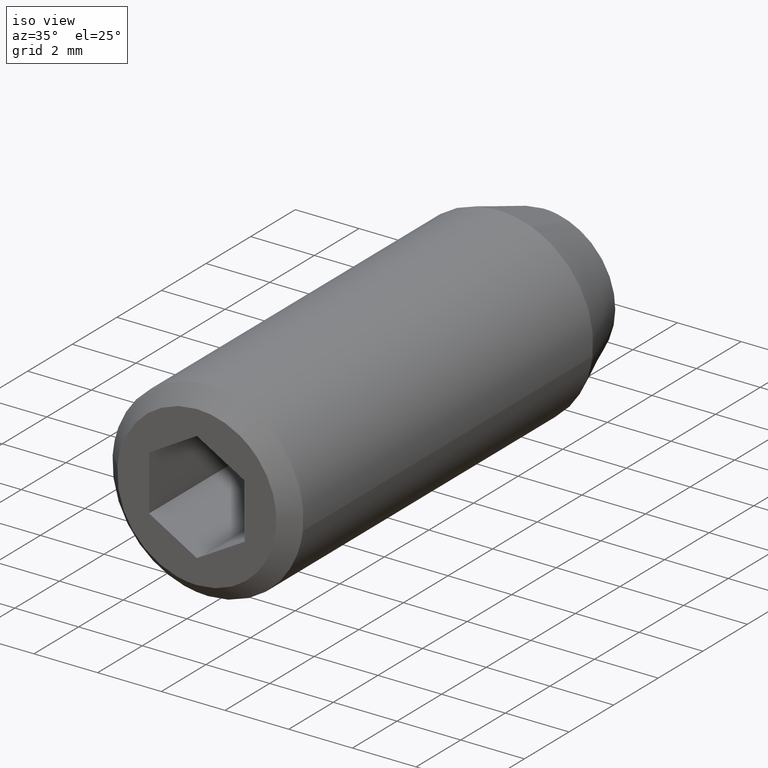
[diagram: clean part render]
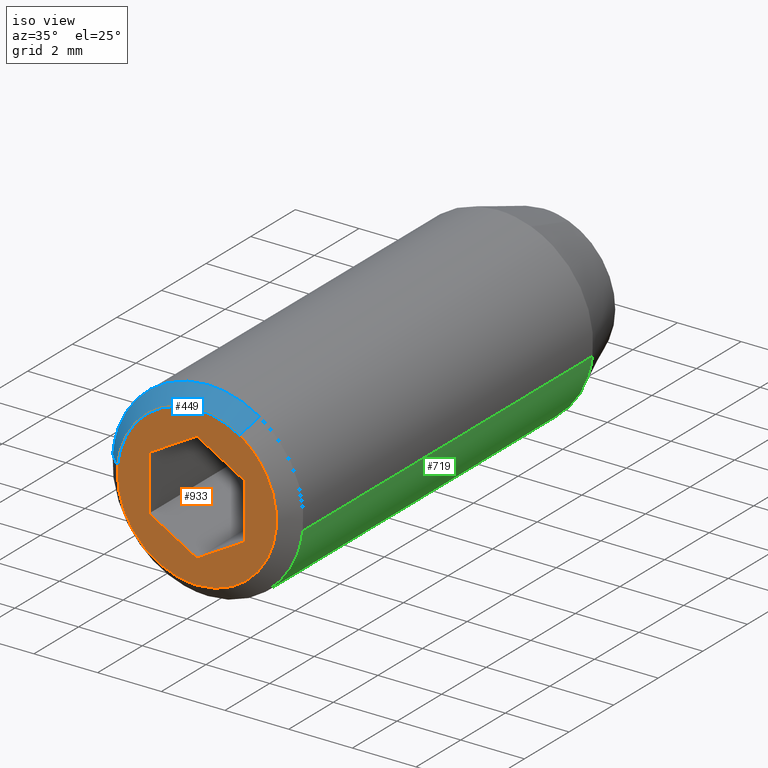
[diagram: same view with three faces highlighted in distinct colors, each labeled with its STEP entity id]
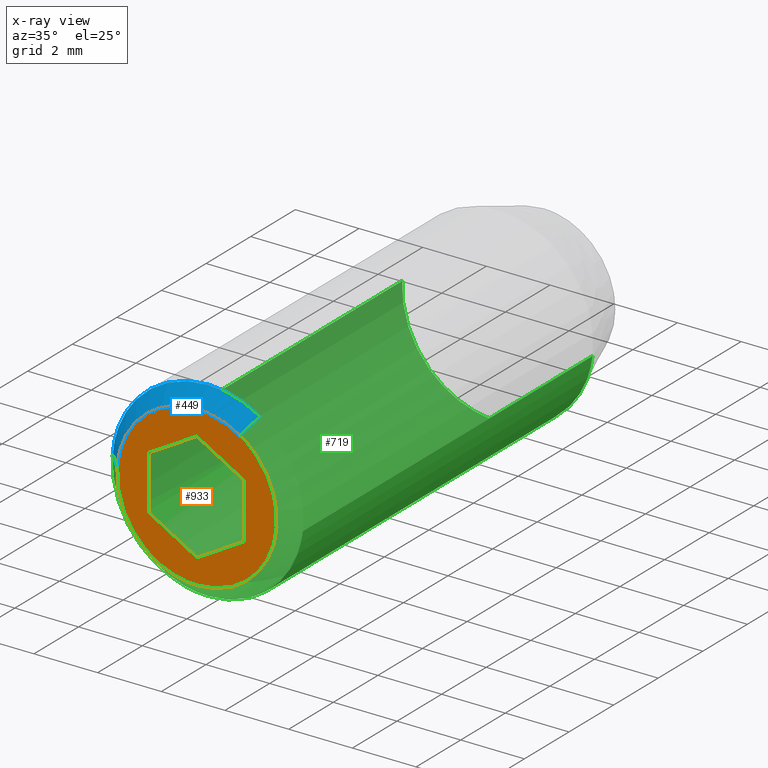
[diagram: x-ray of the same camera — body ghosted, the three highlighted faces saturated]
A machine part, iso view with three faces highlighted in distinct colors.
The next image is the same camera in x-ray (body ghosted, the three faces saturated) — at least one of them is partly hidden behind the body in this view.
Their STEP definitions:

[orange] entity #933 — the highlighted face is a freeform B-spline surface patch.
#275=CARTESIAN_POINT('',(1.344626983623041,-15.549999999999541,2.107600122156740));
#276=VERTEX_POINT('',#275);
#282=CARTESIAN_POINT('',(0.0,-15.550000000000001,-2.500000000000001));
#283=VERTEX_POINT('',#282);
#284=CARTESIAN_POINT('',(0.0,-15.550000000000001,-2.500000000000001));
#285=CARTESIAN_POINT('',(2.500000000000000,-15.549999999999994,-2.500000000000001));
#286=CARTESIAN_POINT('',(2.500000000000000,-15.550000000000001,-6.765950E-016));
#287=CARTESIAN_POINT('',(2.500000000000000,-15.549999999999994,1.370484140025540));
#288=CARTESIAN_POINT('',(1.344626983623042,-15.549999999999534,2.107600122156739));
#296=(BOUNDED_CURVE()B_SPLINE_CURVE(2,(#284,#285,#286,#287,#288),.UNSPECIFIED.,.F.,.U.)B_SPLINE_CURVE_WITH_KNOTS((3,2,3),(0.0,0.250000000000000,0.407950112626514),.UNSPECIFIED.)CURVE()GEOMETRIC_REPRESENTATION_ITEM()RATIONAL_B_SPLINE_CURVE((1.0,0.707106781186548,1.0,0.814949932403492,0.863729296954284))REPRESENTATION_ITEM(''));
#297=EDGE_CURVE('',#283,#276,#296,.T.);
#299=CARTESIAN_POINT('',(-2.492293334334823,-15.549999999994959,0.196147739358426));
#300=VERTEX_POINT('',#299);
#301=CARTESIAN_POINT('',(-2.492293334334823,-15.549999999994961,0.196147739358426));
#302=CARTESIAN_POINT('',(-2.500000000000000,-15.549999999999995,0.098225267557770));
#303=CARTESIAN_POINT('',(-2.500000000000000,-15.550000000000001,-6.765950E-016));
#304=CARTESIAN_POINT('',(-2.500000000000000,-15.549999999999994,-2.500000000000001));
#305=CARTESIAN_POINT('',(0.0,-15.550000000000001,-2.500000000000001));
#313=(BOUNDED_CURVE()B_SPLINE_CURVE(2,(#301,#302,#303,#304,#305),.UNSPECIFIED.,.F.,.U.)B_SPLINE_CURVE_WITH_KNOTS((3,2,3),(0.736331300627482,0.750000000000000,1.0),.UNSPECIFIED.)CURVE()GEOMETRIC_REPRESENTATION_ITEM()RATIONAL_B_SPLINE_CURVE((0.969723356160786,0.983986122575159,1.0,0.707106781186548,1.0))REPRESENTATION_ITEM(''));
#314=EDGE_CURVE('',#300,#283,#313,.T.);
#418=CARTESIAN_POINT('',(0.0,-15.550000000000001,2.499999999999999));
#419=VERTEX_POINT('',#418);
#420=CARTESIAN_POINT('',(0.0,-15.550000000000001,2.499999999999999));
#421=CARTESIAN_POINT('',(-2.310976229074044,-15.549999999999999,2.499999999999999));
#422=CARTESIAN_POINT('',(-2.492293334334823,-15.549999999994958,0.196147739358426));
#430=(BOUNDED_CURVE()B_SPLINE_CURVE(2,(#420,#421,#422),.UNSPECIFIED.,.F.,.U.)B_SPLINE_CURVE_WITH_KNOTS((3,3),(0.500000000000000,0.736331300627481),.UNSPECIFIED.)CURVE()GEOMETRIC_REPRESENTATION_ITEM()RATIONAL_B_SPLINE_CURVE((1.0,0.723120658611389,0.969723356160785))REPRESENTATION_ITEM(''));
#431=EDGE_CURVE('',#419,#300,#430,.T.);
#433=CARTESIAN_POINT('',(1.344626983623041,-15.549999999999541,2.107600122156740));
#434=CARTESIAN_POINT('',(0.729570138457539,-15.549999999999995,2.500000000000000));
#435=CARTESIAN_POINT('',(0.0,-15.550000000000001,2.499999999999999));
#443=(BOUNDED_CURVE()B_SPLINE_CURVE(2,(#433,#434,#435),.UNSPECIFIED.,.F.,.U.)B_SPLINE_CURVE_WITH_KNOTS((3,3),(0.407950112626514,0.500000000000000),.UNSPECIFIED.)CURVE()GEOMETRIC_REPRESENTATION_ITEM()RATIONAL_B_SPLINE_CURVE((0.863729296954284,0.892156848783056,1.0))REPRESENTATION_ITEM(''));
#444=EDGE_CURVE('',#276,#419,#443,.T.);
#787=CARTESIAN_POINT('',(1.084202E-016,-15.550000000000001,1.732051000000000));
#788=VERTEX_POINT('',#787);
#789=CARTESIAN_POINT('',(-1.500000000000000,-15.550000000000001,0.866025000000000));
#790=VERTEX_POINT('',#789);
#791=CARTESIAN_POINT('',(1.084202E-016,-15.550000000000001,1.732051000000000));
#792=CARTESIAN_POINT('',(-1.500000000000000,-15.550000000000001,0.866025000000000));
#793=QUASI_UNIFORM_CURVE('',1,(#791,#792),.UNSPECIFIED.,.F.,.U.);
#794=EDGE_CURVE('',#788,#790,#793,.T.);
#815=CARTESIAN_POINT('',(1.500000000000000,-15.550000000000001,0.866025000000000));
#816=VERTEX_POINT('',#815);
#817=CARTESIAN_POINT('',(1.500000000000000,-15.550000000000001,0.866025000000000));
#818=CARTESIAN_POINT('',(1.084202E-016,-15.550000000000001,1.732051000000000));
#819=QUASI_UNIFORM_CURVE('',1,(#817,#818),.UNSPECIFIED.,.F.,.U.);
#820=EDGE_CURVE('',#816,#788,#819,.T.);
#837=CARTESIAN_POINT('',(1.500000000000000,-15.550000000000001,-0.866025000000000));
#838=VERTEX_POINT('',#837);
#839=CARTESIAN_POINT('',(1.500000000000000,-15.550000000000001,-0.866025000000000));
#840=CARTESIAN_POINT('',(1.500000000000000,-15.550000000000001,0.866025000000000));
#841=QUASI_UNIFORM_CURVE('',1,(#839,#840),.UNSPECIFIED.,.F.,.U.);
#842=EDGE_CURVE('',#838,#816,#841,.T.);
#859=CARTESIAN_POINT('',(0.0,-15.550000000000001,-1.732051000000000));
#860=VERTEX_POINT('',#859);
#861=CARTESIAN_POINT('',(0.0,-15.550000000000001,-1.732051000000000));
#862=CARTESIAN_POINT('',(1.500000000000000,-15.550000000000001,-0.866025000000000));
#863=QUASI_UNIFORM_CURVE('',1,(#861,#862),.UNSPECIFIED.,.F.,.U.);
#864=EDGE_CURVE('',#860,#838,#863,.T.);
#881=CARTESIAN_POINT('',(-1.500000000000000,-15.550000000000001,-0.866025000000000));
#882=VERTEX_POINT('',#881);
#883=CARTESIAN_POINT('',(-1.500000000000000,-15.550000000000001,-0.866025000000000));
#884=CARTESIAN_POINT('',(0.0,-15.550000000000001,-1.732051000000000));
#885=QUASI_UNIFORM_CURVE('',1,(#883,#884),.UNSPECIFIED.,.F.,.U.);
#886=EDGE_CURVE('',#882,#860,#885,.T.);
#903=CARTESIAN_POINT('',(-1.500000000000000,-15.550000000000001,0.866025000000000));
#904=CARTESIAN_POINT('',(-1.500000000000000,-15.550000000000001,-0.866025000000000));
#905=QUASI_UNIFORM_CURVE('',1,(#903,#904),.UNSPECIFIED.,.F.,.U.);
#906=EDGE_CURVE('',#790,#882,#905,.T.);
#914=CARTESIAN_POINT('',(-2.748977449882766,-15.550000000000001,2.749749990309029));
#915=CARTESIAN_POINT('',(-2.748977449882766,-15.550000000000001,-2.749750124419482));
#916=CARTESIAN_POINT('',(2.748788756478569,-15.550000000000001,2.749749990309029));
#917=CARTESIAN_POINT('',(2.748788756478569,-15.550000000000001,-2.749750124419482));
#918=B_SPLINE_SURFACE_WITH_KNOTS('',1,1,((#914,#916),(#915,#917)),.UNSPECIFIED.,.F.,.F.,.U.,(2,2),(2,2),(0.0,5.499500114728511),(0.0,5.497766206361334),.UNSPECIFIED.);
#919=ORIENTED_EDGE('',*,*,#297,.T.);
#920=ORIENTED_EDGE('',*,*,#444,.T.);
#921=ORIENTED_EDGE('',*,*,#431,.T.);
#922=ORIENTED_EDGE('',*,*,#314,.T.);
#923=EDGE_LOOP('',(#919,#920,#921,#922));
#924=FACE_OUTER_BOUND('',#923,.T.);
#925=ORIENTED_EDGE('',*,*,#906,.F.);
#926=ORIENTED_EDGE('',*,*,#794,.F.);
#927=ORIENTED_EDGE('',*,*,#820,.F.);
#928=ORIENTED_EDGE('',*,*,#842,.F.);
#929=ORIENTED_EDGE('',*,*,#864,.F.);
#930=ORIENTED_EDGE('',*,*,#886,.F.);
#931=EDGE_LOOP('',(#925,#926,#927,#928,#929,#930));
#932=FACE_BOUND('',#931,.T.);
#933=ADVANCED_FACE('',(#924,#932),#918,.T.);

[blue] entity #449 — the highlighted face is a freeform B-spline surface patch.
#258=CARTESIAN_POINT('',(1.613552380348581,-15.049999999999390,2.529120146587553));
#259=VERTEX_POINT('',#258);
#275=CARTESIAN_POINT('',(1.344626983623041,-15.549999999999541,2.107600122156740));
#276=VERTEX_POINT('',#275);
#277=CARTESIAN_POINT('',(1.344626983623041,-15.549999999999541,2.107600122156740));
#278=CARTESIAN_POINT('',(1.613552380348581,-15.049999999999390,2.529120146587553));
#279=QUASI_UNIFORM_CURVE('',1,(#277,#278),.UNSPECIFIED.,.F.,.U.);
#280=EDGE_CURVE('',#276,#259,#279,.T.);
#299=CARTESIAN_POINT('',(-2.492293334334823,-15.549999999994959,0.196147739358426));
#300=VERTEX_POINT('',#299);
#316=CARTESIAN_POINT('',(-2.990751486467367,-15.050000547912260,0.235376844060400));
#317=VERTEX_POINT('',#316);
#318=CARTESIAN_POINT('',(-2.492293334334823,-15.549999999994959,0.196147739358426));
#319=CARTESIAN_POINT('',(-2.990751486467367,-15.050000547912260,0.235376844060400));
#320=QUASI_UNIFORM_CURVE('',1,(#318,#319),.UNSPECIFIED.,.F.,.U.);
#321=EDGE_CURVE('',#300,#317,#320,.T.);
#371=CARTESIAN_POINT('',(-2.479831867661154,-15.562500000000000,0.195167000623015));
#372=CARTESIAN_POINT('',(-2.284664867038139,-15.562500000000004,2.674998868284169));
#373=CARTESIAN_POINT('',(0.195167000623016,-15.562500000000000,2.479831867661153));
#374=CARTESIAN_POINT('',(0.814319478020443,-15.562500000000004,2.431103510905284));
#375=CARTESIAN_POINT('',(1.337903848697430,-15.562499999999998,2.097062121550191));
#376=CARTESIAN_POINT('',(-3.003525004537841,-15.037187500000000,0.236382544347549));
#377=CARTESIAN_POINT('',(-2.767142460190291,-15.037187500000002,3.239907548885390));
#378=CARTESIAN_POINT('',(0.236382544347550,-15.037187500000000,3.003525004537840));
#379=CARTESIAN_POINT('',(0.986288201959183,-15.037187499999991,2.944506149326367));
#380=CARTESIAN_POINT('',(1.620443593629642,-15.037187499999991,2.539921597219273));
#388=(BOUNDED_SURFACE()B_SPLINE_SURFACE(2,1,((#371,#376),(#372,#377),(#373,#378),(#374,#379),(#375,#380)),.UNSPECIFIED.,.F.,.F.,.U.)B_SPLINE_SURFACE_WITH_KNOTS((3,2,3),(2,2),(0.0,4.991791193548763,6.589164375484368),(0.0,1.0),.UNSPECIFIED.)GEOMETRIC_REPRESENTATION_ITEM()RATIONAL_B_SPLINE_SURFACE(((1.0,1.0),(0.707106781186548,0.707106781186548),(1.0,1.0),(0.906274169979695,0.906274169979695),(0.872532871172386,0.872532871172386)))REPRESENTATION_ITEM('')SURFACE());
#389=CARTESIAN_POINT('',(0.0,-15.050000000000001,2.999999999999999));
#390=VERTEX_POINT('',#389);
#391=CARTESIAN_POINT('',(1.613552380348582,-15.049999999999390,2.529120146587553));
#392=CARTESIAN_POINT('',(0.875484166150211,-15.050000000000001,3.000000000000000));
#393=CARTESIAN_POINT('',(0.0,-15.050000000000001,2.999999999999999));
#401=(BOUNDED_CURVE()B_SPLINE_CURVE(2,(#391,#392,#393),.UNSPECIFIED.,.F.,.U.)B_SPLINE_CURVE_WITH_KNOTS((3,3),(0.407950112626405,0.500000000000000),.UNSPECIFIED.)CURVE()GEOMETRIC_REPRESENTATION_ITEM()RATIONAL_B_SPLINE_CURVE((0.863729296954217,0.892156848782928,1.0))REPRESENTATION_ITEM(''));
#402=EDGE_CURVE('',#259,#390,#401,.T.);
#403=ORIENTED_EDGE('',*,*,#402,.T.);
#404=CARTESIAN_POINT('',(0.0,-15.050000000000001,2.999999999999999));
#405=CARTESIAN_POINT('',(-2.773172219317691,-15.049999999999995,2.999999999999999));
#406=CARTESIAN_POINT('',(-2.990751486467367,-15.050000547912258,0.235376844060400));
#414=(BOUNDED_CURVE()B_SPLINE_CURVE(2,(#404,#405,#406),.UNSPECIFIED.,.F.,.U.)B_SPLINE_CURVE_WITH_KNOTS((3,3),(0.500000000000000,0.736331346502732),.UNSPECIFIED.)CURVE()GEOMETRIC_REPRESENTATION_ITEM()RATIONAL_B_SPLINE_CURVE((1.0,0.723120604865190,0.969723451898952))REPRESENTATION_ITEM(''));
#415=EDGE_CURVE('',#390,#317,#414,.T.);
#416=ORIENTED_EDGE('',*,*,#415,.T.);
#417=ORIENTED_EDGE('',*,*,#321,.F.);
#418=CARTESIAN_POINT('',(0.0,-15.550000000000001,2.499999999999999));
#419=VERTEX_POINT('',#418);
#420=CARTESIAN_POINT('',(0.0,-15.550000000000001,2.499999999999999));
#421=CARTESIAN_POINT('',(-2.310976229074044,-15.549999999999999,2.499999999999999));
#422=CARTESIAN_POINT('',(-2.492293334334823,-15.549999999994958,0.196147739358426));
#430=(BOUNDED_CURVE()B_SPLINE_CURVE(2,(#420,#421,#422),.UNSPECIFIED.,.F.,.U.)B_SPLINE_CURVE_WITH_KNOTS((3,3),(0.500000000000000,0.736331300627481),.UNSPECIFIED.)CURVE()GEOMETRIC_REPRESENTATION_ITEM()RATIONAL_B_SPLINE_CURVE((1.0,0.723120658611389,0.969723356160785))REPRESENTATION_ITEM(''));
#431=EDGE_CURVE('',#419,#300,#430,.T.);
#432=ORIENTED_EDGE('',*,*,#431,.F.);
#433=CARTESIAN_POINT('',(1.344626983623041,-15.549999999999541,2.107600122156740));
#434=CARTESIAN_POINT('',(0.729570138457539,-15.549999999999995,2.500000000000000));
#435=CARTESIAN_POINT('',(0.0,-15.550000000000001,2.499999999999999));
#443=(BOUNDED_CURVE()B_SPLINE_CURVE(2,(#433,#434,#435),.UNSPECIFIED.,.F.,.U.)B_SPLINE_CURVE_WITH_KNOTS((3,3),(0.407950112626514,0.500000000000000),.UNSPECIFIED.)CURVE()GEOMETRIC_REPRESENTATION_ITEM()RATIONAL_B_SPLINE_CURVE((0.863729296954284,0.892156848783056,1.0))REPRESENTATION_ITEM(''));
#444=EDGE_CURVE('',#276,#419,#443,.T.);
#445=ORIENTED_EDGE('',*,*,#444,.F.);
#446=ORIENTED_EDGE('',*,*,#280,.T.);
#447=EDGE_LOOP('',(#403,#416,#417,#432,#445,#446));
#448=FACE_OUTER_BOUND('',#447,.T.);
#449=ADVANCED_FACE('',(#448),#388,.T.);

[green] entity #719 — the highlighted face is a freeform B-spline surface patch.
#256=CARTESIAN_POINT('',(2.979028827039997,-15.050000000000001,-0.354100617989129));
#257=VERTEX_POINT('',#256);
#323=CARTESIAN_POINT('',(-2.994404631648551,-15.049999999999990,0.183141753695629));
#324=VERTEX_POINT('',#323);
#338=CARTESIAN_POINT('',(0.0,-15.050000000000001,-3.000000000000001));
#339=VERTEX_POINT('',#338);
#340=CARTESIAN_POINT('',(-2.994404631648550,-15.049999999999997,0.183141753695629));
#341=CARTESIAN_POINT('',(-3.0,-15.050000000000001,0.091656352023072));
#342=CARTESIAN_POINT('',(-3.0,-15.050000000000001,-6.765950E-016));
#343=CARTESIAN_POINT('',(-3.0,-15.049999999999999,-3.0));
#344=CARTESIAN_POINT('',(0.0,-15.050000000000001,-3.000000000000001));
#352=(BOUNDED_CURVE()B_SPLINE_CURVE(2,(#340,#341,#342,#343,#344),.UNSPECIFIED.,.F.,.U.)B_SPLINE_CURVE_WITH_KNOTS((3,2,3),(0.739333184949944,0.750000000000000,1.0),.UNSPECIFIED.)CURVE()GEOMETRIC_REPRESENTATION_ITEM()RATIONAL_B_SPLINE_CURVE((0.976072518979253,0.987503048822005,1.0,0.707106781186548,1.0))REPRESENTATION_ITEM(''));
#353=EDGE_CURVE('',#324,#339,#352,.T.);
#355=CARTESIAN_POINT('',(0.0,-15.050000000000001,-3.000000000000001));
#356=CARTESIAN_POINT('',(2.664525456746725,-15.050000000000004,-3.000000000000001));
#357=CARTESIAN_POINT('',(2.979028827039997,-15.050000000000002,-0.354100617989129));
#365=(BOUNDED_CURVE()B_SPLINE_CURVE(2,(#355,#356,#357),.UNSPECIFIED.,.F.,.U.)B_SPLINE_CURVE_WITH_KNOTS((3,3),(0.0,0.229562591855431),.UNSPECIFIED.)CURVE()GEOMETRIC_REPRESENTATION_ITEM()RATIONAL_B_SPLINE_CURVE((1.0,0.731050694209216,0.956026986138842))REPRESENTATION_ITEM(''));
#366=EDGE_CURVE('',#339,#257,#365,.T.);
#522=CARTESIAN_POINT('',(-2.994404511037095,-2.060607997349454,0.183143709914920));
#523=VERTEX_POINT('',#522);
#567=CARTESIAN_POINT('',(2.979028823977284,-2.060608000000000,-0.354100643755718));
#568=VERTEX_POINT('',#567);
#584=CARTESIAN_POINT('',(0.0,-2.060608000000000,-3.000000000000001));
#585=VERTEX_POINT('',#584);
#586=CARTESIAN_POINT('',(0.0,-2.060608000000000,-3.000000000000001));
#587=CARTESIAN_POINT('',(2.664525433538144,-2.060608000000000,-3.000000000000001));
#588=CARTESIAN_POINT('',(2.979028823977285,-2.060608000000001,-0.354100643755718));
#596=(BOUNDED_CURVE()B_SPLINE_CURVE(2,(#586,#587,#588),.UNSPECIFIED.,.F.,.U.)B_SPLINE_CURVE_WITH_KNOTS((3,3),(0.0,0.229562590393667),.UNSPECIFIED.)CURVE()GEOMETRIC_REPRESENTATION_ITEM()RATIONAL_B_SPLINE_CURVE((1.0,0.731050695921779,0.956026983273721))REPRESENTATION_ITEM(''));
#597=EDGE_CURVE('',#585,#568,#596,.T.);
#599=CARTESIAN_POINT('',(-2.994404511037095,-2.060607997349454,0.183143709914921));
#600=CARTESIAN_POINT('',(-3.000000000000000,-2.060608000000000,0.091657332904665));
#601=CARTESIAN_POINT('',(-3.0,-2.060608000000000,-6.765950E-016));
#602=CARTESIAN_POINT('',(-3.0,-2.060607999999999,-3.0));
#603=CARTESIAN_POINT('',(0.0,-2.060608000000000,-3.000000000000001));
#611=(BOUNDED_CURVE()B_SPLINE_CURVE(2,(#599,#600,#601,#602,#603),.UNSPECIFIED.,.F.,.U.)B_SPLINE_CURVE_WITH_KNOTS((3,2,3),(0.739333072223147,0.750000000000000,1.0),.UNSPECIFIED.)CURVE()GEOMETRIC_REPRESENTATION_ITEM()RATIONAL_B_SPLINE_CURVE((0.976072277383916,0.987502916754347,1.0,0.707106781186548,1.0))REPRESENTATION_ITEM(''));
#612=EDGE_CURVE('',#523,#585,#611,.T.);
#674=CARTESIAN_POINT('',(2.979028823977284,-2.060608000000000,-0.354100643755718));
#675=CARTESIAN_POINT('',(2.979028827039997,-15.050000000000001,-0.354100617989129));
#676=QUASI_UNIFORM_CURVE('',1,(#674,#675),.UNSPECIFIED.,.F.,.U.);
#677=EDGE_CURVE('',#568,#257,#676,.T.);
#682=CARTESIAN_POINT('',(-2.994404511037095,-2.060607997349454,0.183143709914920));
#683=CARTESIAN_POINT('',(-2.994404631648551,-15.049999999999990,0.183141753695629));
#684=QUASI_UNIFORM_CURVE('',1,(#682,#683),.UNSPECIFIED.,.F.,.U.);
#685=EDGE_CURVE('',#523,#324,#684,.T.);
#693=CARTESIAN_POINT('',(-2.994404395265600,-1.735873199999999,0.183145618604570));
#694=CARTESIAN_POINT('',(-3.177550013870171,-1.735873200000000,-2.811258776661029));
#695=CARTESIAN_POINT('',(-0.183145618604571,-1.735873199999999,-2.994404395265601));
#696=CARTESIAN_POINT('',(2.644630472518504,-1.735873199999999,-3.167358590197583));
#697=CARTESIAN_POINT('',(2.979028579091000,-1.735873199999999,-0.354102703970276));
#698=CARTESIAN_POINT('',(-2.994404395265600,-15.382853170000001,0.183145618604570));
#699=CARTESIAN_POINT('',(-3.177550013870171,-15.382853170000001,-2.811258776661029));
#700=CARTESIAN_POINT('',(-0.183145618604571,-15.382853170000001,-2.994404395265601));
#701=CARTESIAN_POINT('',(2.644630472518504,-15.382853169999997,-3.167358590197583));
#702=CARTESIAN_POINT('',(2.979028579091000,-15.382853169999997,-0.354102703970276));
#710=(BOUNDED_SURFACE()B_SPLINE_SURFACE(2,1,((#693,#698),(#694,#699),(#695,#700),(#696,#701),(#697,#702)),.UNSPECIFIED.,.F.,.F.,.U.)B_SPLINE_SURFACE_WITH_KNOTS((3,2,3),(2,2),(0.0,4.970562748477139,9.742302987015194),(0.0,13.646979970000000),.UNSPECIFIED.)GEOMETRIC_REPRESENTATION_ITEM()RATIONAL_B_SPLINE_SURFACE(((1.0,1.0),(0.707106781186548,0.707106781186548),(1.0,1.0),(0.718822509939086,0.718822509939086),(0.977505800795127,0.977505800795127)))REPRESENTATION_ITEM('')SURFACE());
#711=ORIENTED_EDGE('',*,*,#366,.F.);
#712=ORIENTED_EDGE('',*,*,#353,.F.);
#713=ORIENTED_EDGE('',*,*,#685,.F.);
#714=ORIENTED_EDGE('',*,*,#612,.T.);
#715=ORIENTED_EDGE('',*,*,#597,.T.);
#716=ORIENTED_EDGE('',*,*,#677,.T.);
#717=EDGE_LOOP('',(#711,#712,#713,#714,#715,#716));
#718=FACE_OUTER_BOUND('',#717,.T.);
#719=ADVANCED_FACE('',(#718),#710,.T.);